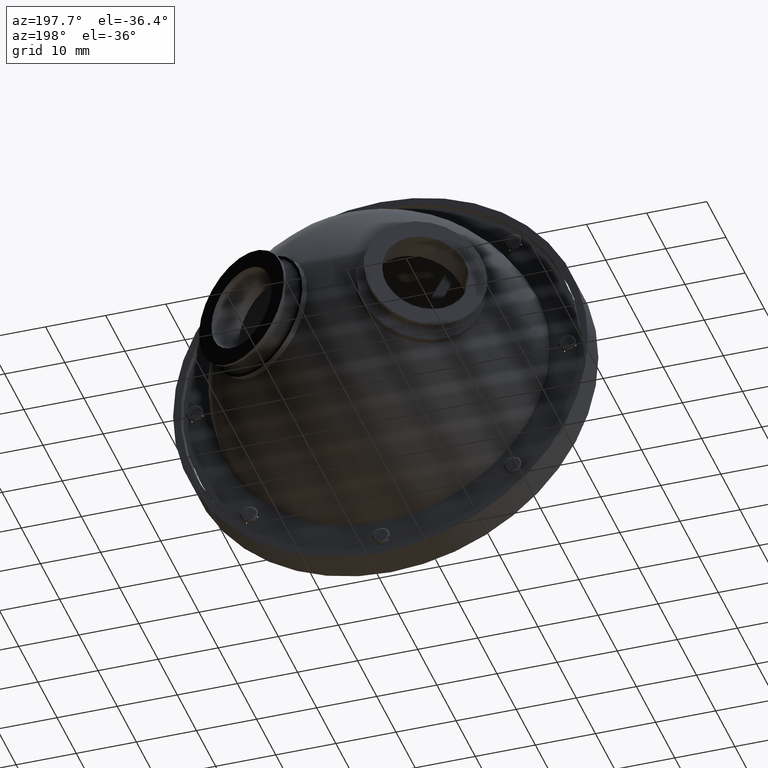
[diagram: clean part render]
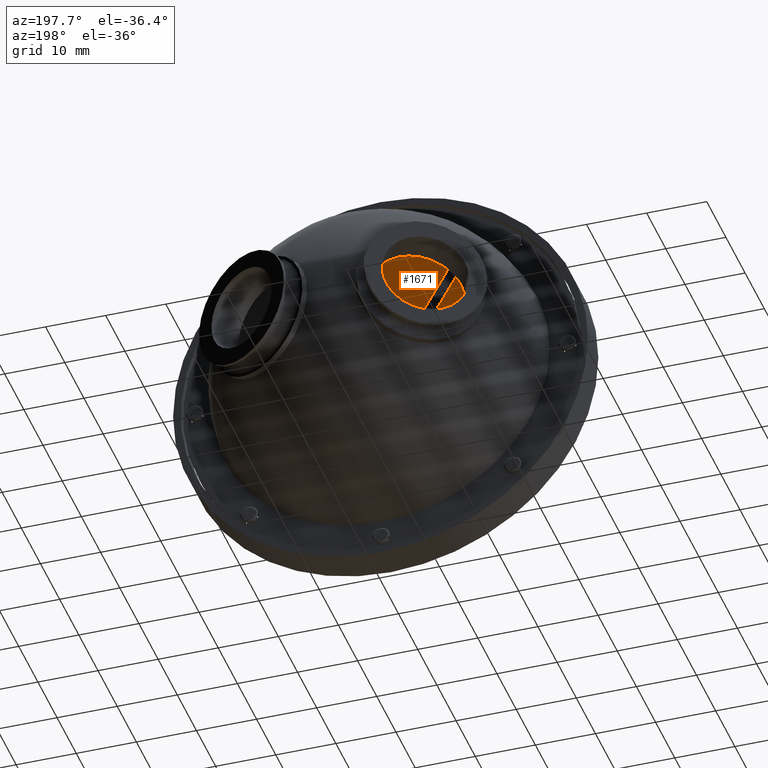
[diagram: same view with one face highlighted and labeled with its STEP entity id]
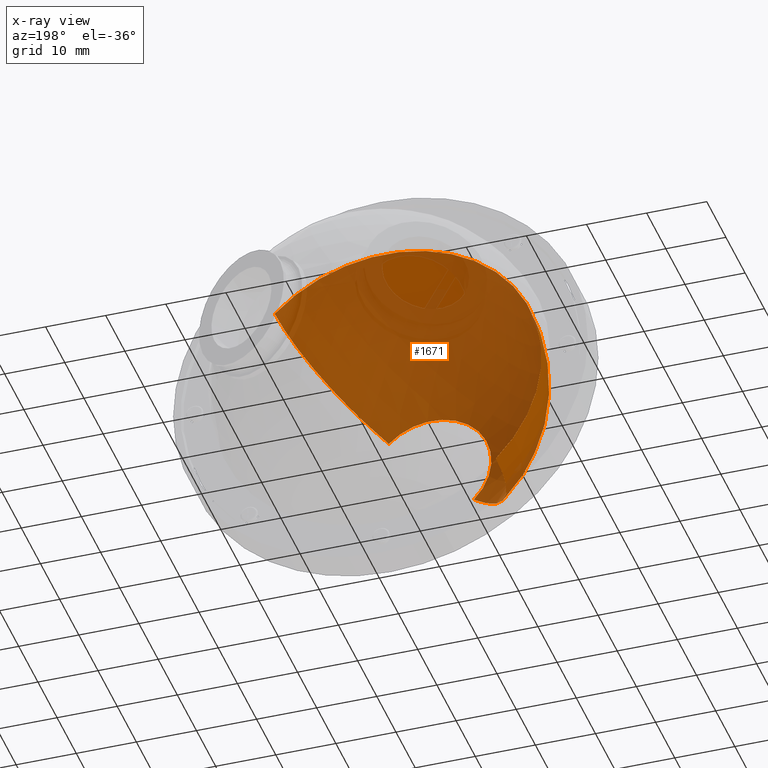
[diagram: x-ray of the same camera — body ghosted, the highlighted face saturated]
A machine part, auxiliary view. The second image highlights one B-rep face of the part: STEP entity #1671.
The next image is the same camera in x-ray: the body ghosted, the highlighted face saturated — about 88% of this face is hidden behind the body in this view.
In plain terms, the highlighted spherical surface has radius 26 mm.
Its self-contained STEP definition (entity closure, byte-faithful):
#102 = EDGE_CURVE ( 'NONE', #973, #710, #692, .T. ) ;
#179 = CARTESIAN_POINT ( 'NONE',  ( 8.484018949608307381, -18.31086588718419605, 0.000000000000000000 ) ) ;
#297 = DIRECTION ( 'NONE',  ( 0.000000000000000000, 1.000000000000000000, 0.000000000000000000 ) ) ;
#442 = AXIS2_PLACEMENT_3D ( 'NONE', #5861, #297, #2737 ) ;
#655 = EDGE_CURVE ( 'NONE', #6326, #710, #5692, .T. ) ;
#692 = CIRCLE ( 'NONE', #5287, 26.00000000000000000 ) ;
#710 = VERTEX_POINT ( 'NONE', #7365 ) ;
#808 = DIRECTION ( 'NONE',  ( 0.7071067811865586750, 0.000000000000000000, -0.7071067811865363595 ) ) ;
#973 = VERTEX_POINT ( 'NONE', #6213 ) ;
#981 = CARTESIAN_POINT ( 'NONE',  ( 8.484018949608307381, -42.31086588718420671, 0.000000000000000000 ) ) ;
#991 = AXIS2_PLACEMENT_3D ( 'NONE', #179, #4495, #5740 ) ;
#1029 = DIRECTION ( 'NONE',  ( -0.000000000000000000, -1.000000000000000000, -0.000000000000000000 ) ) ;
#1342 = CIRCLE ( 'NONE', #2784, 10.00000000000001776 ) ;
#1359 = ORIENTED_EDGE ( 'NONE', *, *, #655, .T. ) ;
#1619 = AXIS2_PLACEMENT_3D ( 'NONE', #6477, #808, #2716 ) ;
#1671 = ADVANCED_FACE ( 'NONE', ( #4613 ), #3845, .F. ) ;
#1740 = ORIENTED_EDGE ( 'NONE', *, *, #102, .F. ) ;
#1950 = ORIENTED_EDGE ( 'NONE', *, *, #5468, .T. ) ;
#2224 = DIRECTION ( 'NONE',  ( -0.7071067811865585639, 0.000000000000000000, 0.7071067811865364705 ) ) ;
#2716 = DIRECTION ( 'NONE',  ( -0.7071067811865364705, 0.000000000000000000, -0.7071067811865586750 ) ) ;
#2737 = DIRECTION ( 'NONE',  ( -0.7071067811865585639, 0.000000000000000000, 0.7071067811865365815 ) ) ;
#2784 = AXIS2_PLACEMENT_3D ( 'NONE', #981, #1029, #2224 ) ;
#2921 = CARTESIAN_POINT ( 'NONE',  ( -9.900757361241653953, -18.31086588718419605, -18.38477631085054398 ) ) ;
#3845 = SPHERICAL_SURFACE ( 'NONE', #991, 26.00000000000000355 ) ;
#4045 = VERTEX_POINT ( 'NONE', #7678 ) ;
#4215 = EDGE_CURVE ( 'NONE', #973, #4045, #1342, .T. ) ;
#4495 = DIRECTION ( 'NONE',  ( 0.7071067811865585639, 0.000000000000000000, -0.7071067811865364705 ) ) ;
#4554 = DIRECTION ( 'NONE',  ( 0.7071067811865364705, 0.000000000000000000, 0.7071067811865585639 ) ) ;
#4613 = FACE_OUTER_BOUND ( 'NONE', #7762, .T. ) ;
#4721 = ORIENTED_EDGE ( 'NONE', *, *, #4215, .T. ) ;
#5156 = CIRCLE ( 'NONE', #1619, 26.00000000000000000 ) ;
#5287 = AXIS2_PLACEMENT_3D ( 'NONE', #6241, #5695, #4554 ) ;
#5468 = EDGE_CURVE ( 'NONE', #4045, #6326, #5156, .T. ) ;
#5692 = CIRCLE ( 'NONE', #442, 26.00000000000004619 ) ;
#5695 = DIRECTION ( 'NONE',  ( -0.7071067811865585639, 0.000000000000000000, 0.7071067811865364705 ) ) ;
#5740 = DIRECTION ( 'NONE',  ( 0.7071067811865364705, 0.000000000000000000, 0.7071067811865585639 ) ) ;
#5861 = CARTESIAN_POINT ( 'NONE',  ( 8.484018949608307381, -18.31086588718419605, 0.000000000000000000 ) ) ;
#6213 = CARTESIAN_POINT ( 'NONE',  ( 15.55508676147370650, -42.31086588718420671, 7.071067811865619390 ) ) ;
#6241 = CARTESIAN_POINT ( 'NONE',  ( 8.484018949608307381, -18.31086588718419605, 0.000000000000000000 ) ) ;
#6326 = VERTEX_POINT ( 'NONE', #2921 ) ;
#6477 = CARTESIAN_POINT ( 'NONE',  ( 8.484018949608307381, -18.31086588718419605, 0.000000000000000000 ) ) ;
#7365 = CARTESIAN_POINT ( 'NONE',  ( 26.86879526045827404, -18.31086588718419605, 18.38477631085053687 ) ) ;
#7678 = CARTESIAN_POINT ( 'NONE',  ( 1.412951137742905150, -42.31086588718420671, -7.071067811865625607 ) ) ;
#7762 = EDGE_LOOP ( 'NONE', ( #4721, #1950, #1359, #1740 ) ) ;